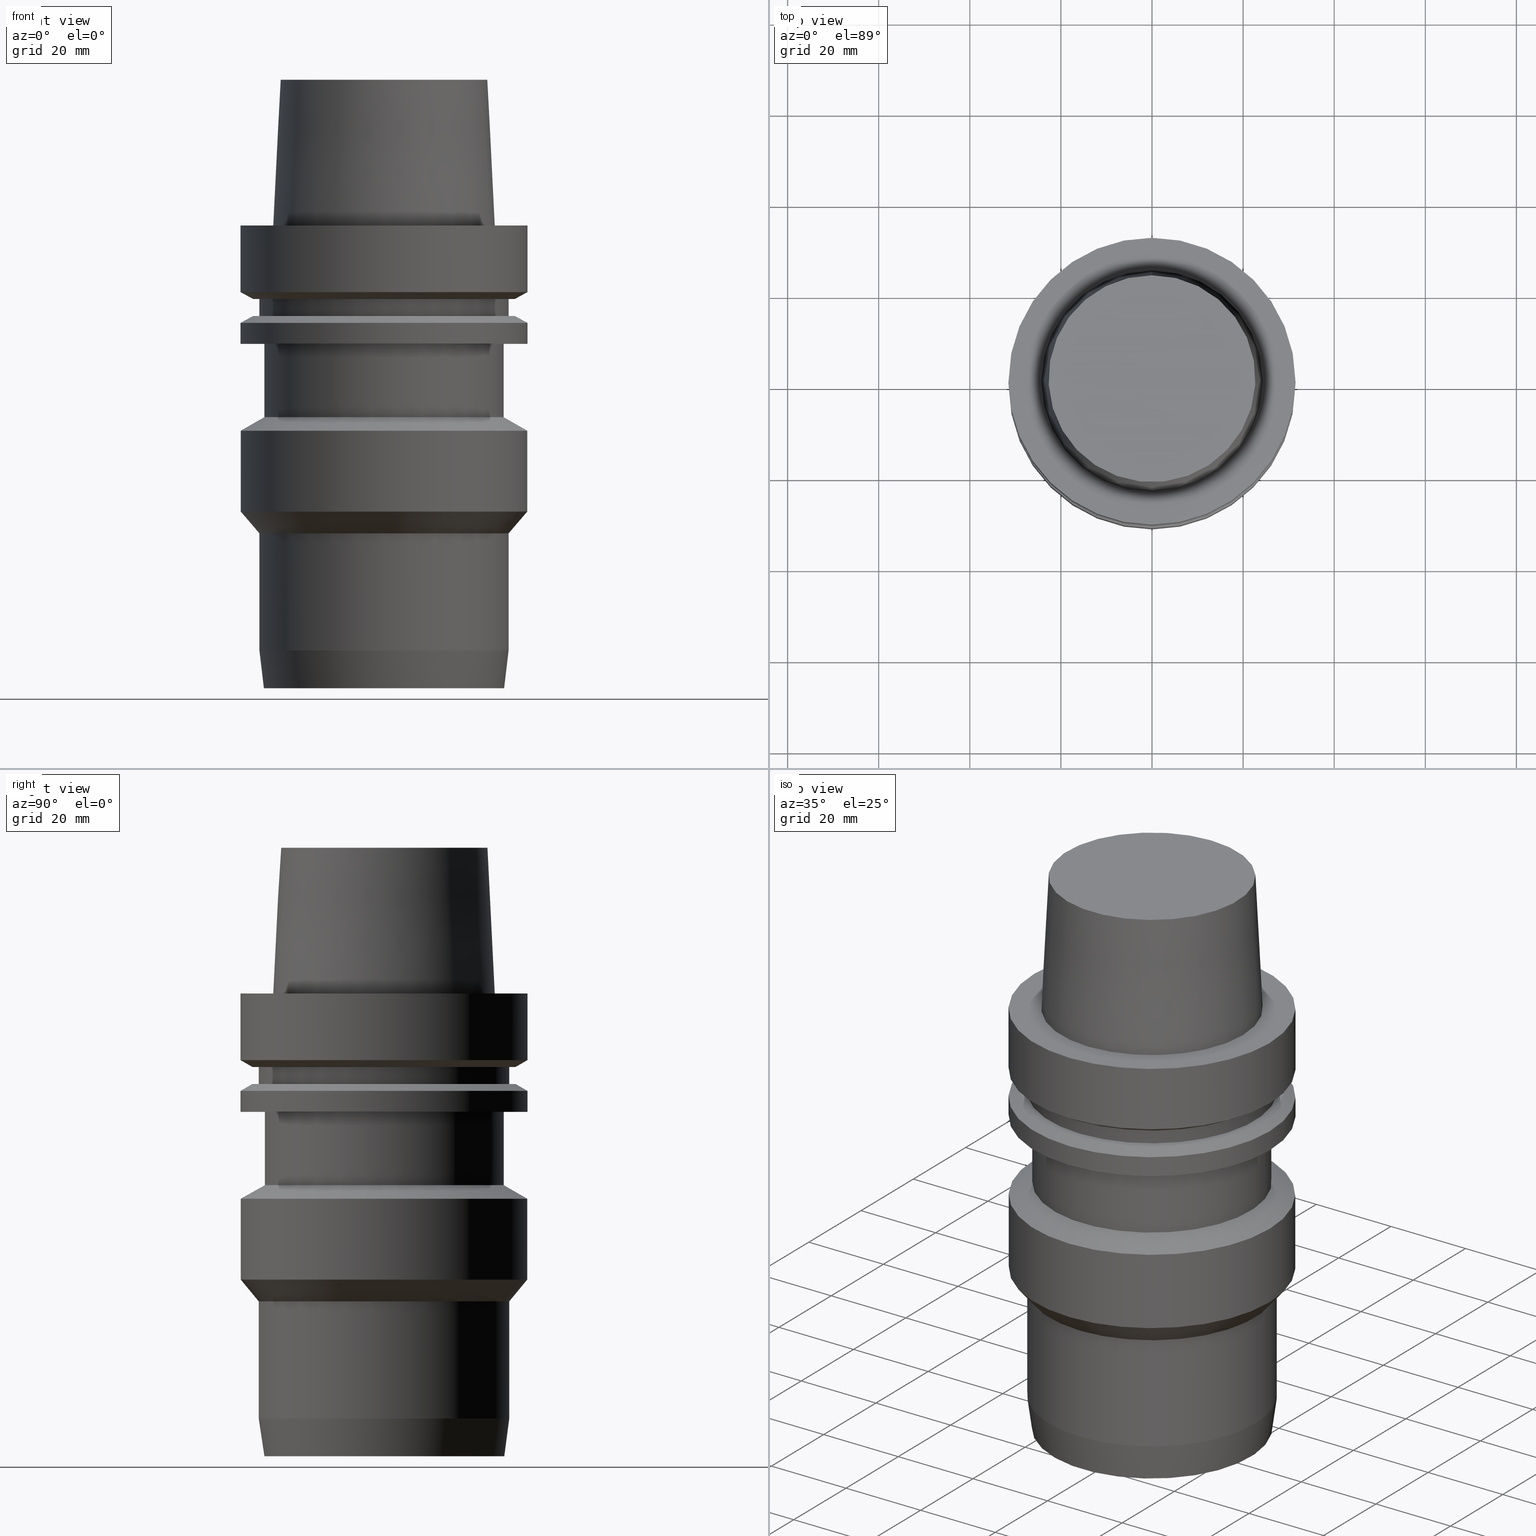
[diagram: canonical four-view strip — front | top / right | iso, engineering-drawing reading convention]
A machine part, canonical four-view strip (front | top / right | iso — engineering-drawing reading convention). The complete STEP part file that produces these views, byte-faithful:
ISO-10303-21;
HEADER;
FILE_DESCRIPTION((''),'1');
FILE_NAME('V:/90_\X2\53D65F9730C730FC30BF\X0\/00_\X2\6DE18DEF30C730FC30BF\X0\/ALL/HSK-BKUS\X2\52A05DE556F3\X0\_201801/HSK-A63-HDC/HSK-A63-HDC1.000-4.stp','2018-02-01T05:24:52',(''),(''),'Spatial Interop R21 SP3','Kubotek KeyCreator 2011 V10.0.2 (22737)',' ');
FILE_SCHEMA(('automotive_design'));
ENDSEC;
DATA;
#1=MECHANICAL_DESIGN_GEOMETRIC_PRESENTATION_REPRESENTATION(' ',(#10,#11,#12,#13,#14,#15,#16,#17,#18,#19,#20,#21,#22,#23,#24,#25,#26,#27,#28,#29,#30,#31,#32,#33,#34,#35,#36,#37,#38,#39,#40,#41,#42,#43,#44,#45),#6);
#2=PRODUCT_DEFINITION_CONTEXT('',#46,'design');
#3=APPLICATION_PROTOCOL_DEFINITION('INTERNATIONAL STANDARD','automotive_design',1994,#46);
#4=PRODUCT_CATEGORY_RELATIONSHIP('NONE','NONE',#47,#48);
#5=SHAPE_DEFINITION_REPRESENTATION(#49,#50);
#6= (GEOMETRIC_REPRESENTATION_CONTEXT(3)GLOBAL_UNCERTAINTY_ASSIGNED_CONTEXT((#53))GLOBAL_UNIT_ASSIGNED_CONTEXT((#55,#56,#57))REPRESENTATION_CONTEXT('NONE','WORKSPACE'));
#10=STYLED_ITEM('',(#59),#60);
#11=STYLED_ITEM('',(#61,#62),#63);
#12=STYLED_ITEM('',(#64,#65),#66);
#13=STYLED_ITEM('',(#67,#68),#69);
#14=STYLED_ITEM('',(#70),#71);
#15=STYLED_ITEM('',(#72),#73);
#16=STYLED_ITEM('',(#74),#75);
#17=STYLED_ITEM('',(#76),#77);
#18=STYLED_ITEM('',(#78),#79);
#19=STYLED_ITEM('',(#80,#81),#82);
#20=STYLED_ITEM('',(#83,#84),#85);
#21=STYLED_ITEM('',(#86,#87),#88);
#22=STYLED_ITEM('',(#89),#90);
#23=STYLED_ITEM('',(#91),#92);
#24=STYLED_ITEM('',(#93,#94),#95);
#25=STYLED_ITEM('',(#96,#97),#98);
#26=STYLED_ITEM('',(#99,#100),#101);
#27=STYLED_ITEM('',(#102),#103);
#28=STYLED_ITEM('',(#104,#105),#106);
#29=STYLED_ITEM('',(#107),#108);
#30=STYLED_ITEM('',(#109,#110),#111);
#31=STYLED_ITEM('',(#112,#113),#114);
#32=STYLED_ITEM('',(#115,#116),#117);
#33=STYLED_ITEM('',(#118,#119),#120);
#34=STYLED_ITEM('',(#121,#122),#123);
#35=STYLED_ITEM('',(#124),#125);
#36=STYLED_ITEM('',(#126,#127),#128);
#37=STYLED_ITEM('',(#129),#130);
#38=STYLED_ITEM('',(#131,#132),#133);
#39=STYLED_ITEM('',(#134),#135);
#40=STYLED_ITEM('',(#136,#137),#138);
#41=STYLED_ITEM('',(#139),#140);
#42=STYLED_ITEM('',(#141),#142);
#43=STYLED_ITEM('',(#143),#144);
#44=STYLED_ITEM('',(#145),#146);
#45=STYLED_ITEM('',(#147,#148),#149);
#46=APPLICATION_CONTEXT(' ');
#47=PRODUCT_CATEGORY('part','NONE');
#48=PRODUCT_RELATED_PRODUCT_CATEGORY('detail',' ',(#150));
#49=PRODUCT_DEFINITION_SHAPE('NONE','NONE',#151);
#50=ADVANCED_BREP_SHAPE_REPRESENTATION('Unnamed[1]',(#63,#152),#6);
#53=UNCERTAINTY_MEASURE_WITH_UNIT(LENGTH_MEASURE(1.0E-006),#55,'','');
#55= (CONVERSION_BASED_UNIT('MILLIMETRE',#155)LENGTH_UNIT()NAMED_UNIT(#158));
#56= (NAMED_UNIT(#160)PLANE_ANGLE_UNIT()SI_UNIT($,.RADIAN.));
#57= (NAMED_UNIT(#160)SOLID_ANGLE_UNIT()SI_UNIT($,.STERADIAN.));
#59=PRESENTATION_STYLE_ASSIGNMENT((#166));
#60=EDGE_CURVE('Unnamed[1]',#167,#167,#168,.T.);
#61=PRESENTATION_STYLE_ASSIGNMENT((#169));
#62=PRESENTATION_STYLE_ASSIGNMENT((#170));
#63=MANIFOLD_SOLID_BREP('Unnamed[1]',#171);
#64=PRESENTATION_STYLE_ASSIGNMENT((#172));
#65=PRESENTATION_STYLE_ASSIGNMENT((#173));
#66=ADVANCED_FACE('Unnamed[1]',(#174,#175),#176,.T.);
#67=PRESENTATION_STYLE_ASSIGNMENT((#177));
#68=PRESENTATION_STYLE_ASSIGNMENT((#178));
#69=ADVANCED_FACE('Unnamed[1]',(#179,#180),#181,.T.);
#70=PRESENTATION_STYLE_ASSIGNMENT((#182));
#71=EDGE_CURVE('Unnamed[1]',#183,#183,#184,.T.);
#72=PRESENTATION_STYLE_ASSIGNMENT((#185));
#73=EDGE_CURVE('Unnamed[1]',#186,#186,#187,.T.);
#74=PRESENTATION_STYLE_ASSIGNMENT((#188));
#75=EDGE_CURVE('Unnamed[1]',#189,#189,#190,.T.);
#76=PRESENTATION_STYLE_ASSIGNMENT((#191));
#77=EDGE_CURVE('Unnamed[1]',#192,#192,#193,.T.);
#78=PRESENTATION_STYLE_ASSIGNMENT((#194));
#79=EDGE_CURVE('Unnamed[1]',#195,#195,#196,.T.);
#80=PRESENTATION_STYLE_ASSIGNMENT((#197));
#81=PRESENTATION_STYLE_ASSIGNMENT((#198));
#82=ADVANCED_FACE('Unnamed[1]',(#199,#200),#201,.T.);
#83=PRESENTATION_STYLE_ASSIGNMENT((#202));
#84=PRESENTATION_STYLE_ASSIGNMENT((#203));
#85=ADVANCED_FACE('Unnamed[1]',(#204,#205),#206,.T.);
#86=PRESENTATION_STYLE_ASSIGNMENT((#207));
#87=PRESENTATION_STYLE_ASSIGNMENT((#208));
#88=ADVANCED_FACE('Unnamed[1]',(#209,#210),#211,.T.);
#89=PRESENTATION_STYLE_ASSIGNMENT((#212));
#90=EDGE_CURVE('Unnamed[1]',#213,#213,#214,.T.);
#91=PRESENTATION_STYLE_ASSIGNMENT((#215));
#92=EDGE_CURVE('Unnamed[1]',#216,#216,#217,.T.);
#93=PRESENTATION_STYLE_ASSIGNMENT((#218));
#94=PRESENTATION_STYLE_ASSIGNMENT((#219));
#95=ADVANCED_FACE('Unnamed[1]',(#220,#221),#222,.T.);
#96=PRESENTATION_STYLE_ASSIGNMENT((#223));
#97=PRESENTATION_STYLE_ASSIGNMENT((#224));
#98=ADVANCED_FACE('Unnamed[1]',(#225),#226,.T.);
#99=PRESENTATION_STYLE_ASSIGNMENT((#227));
#100=PRESENTATION_STYLE_ASSIGNMENT((#228));
#101=ADVANCED_FACE('Unnamed[1]',(#229,#230),#231,.T.);
#102=PRESENTATION_STYLE_ASSIGNMENT((#232));
#103=EDGE_CURVE('Unnamed[1]',#233,#233,#234,.T.);
#104=PRESENTATION_STYLE_ASSIGNMENT((#235));
#105=PRESENTATION_STYLE_ASSIGNMENT((#236));
#106=ADVANCED_FACE('Unnamed[1]',(#237,#238),#239,.T.);
#107=PRESENTATION_STYLE_ASSIGNMENT((#240));
#108=EDGE_CURVE('Unnamed[1]',#241,#241,#242,.T.);
#109=PRESENTATION_STYLE_ASSIGNMENT((#243));
#110=PRESENTATION_STYLE_ASSIGNMENT((#244));
#111=ADVANCED_FACE('Unnamed[1]',(#245,#246),#247,.T.);
#112=PRESENTATION_STYLE_ASSIGNMENT((#248));
#113=PRESENTATION_STYLE_ASSIGNMENT((#249));
#114=ADVANCED_FACE('Unnamed[1]',(#250,#251),#252,.T.);
#115=PRESENTATION_STYLE_ASSIGNMENT((#253));
#116=PRESENTATION_STYLE_ASSIGNMENT((#254));
#117=ADVANCED_FACE('Unnamed[1]',(#255,#256),#257,.T.);
#118=PRESENTATION_STYLE_ASSIGNMENT((#258));
#119=PRESENTATION_STYLE_ASSIGNMENT((#259));
#120=ADVANCED_FACE('Unnamed[1]',(#260,#261),#262,.T.);
#121=PRESENTATION_STYLE_ASSIGNMENT((#263));
#122=PRESENTATION_STYLE_ASSIGNMENT((#264));
#123=ADVANCED_FACE('Unnamed[1]',(#265,#266),#267,.T.);
#124=PRESENTATION_STYLE_ASSIGNMENT((#268));
#125=EDGE_CURVE('Unnamed[1]',#269,#269,#270,.T.);
#126=PRESENTATION_STYLE_ASSIGNMENT((#271));
#127=PRESENTATION_STYLE_ASSIGNMENT((#272));
#128=ADVANCED_FACE('Unnamed[1]',(#273,#274),#275,.T.);
#129=PRESENTATION_STYLE_ASSIGNMENT((#276));
#130=EDGE_CURVE('Unnamed[1]',#277,#277,#278,.T.);
#131=PRESENTATION_STYLE_ASSIGNMENT((#279));
#132=PRESENTATION_STYLE_ASSIGNMENT((#280));
#133=ADVANCED_FACE('Unnamed[1]',(#281,#282),#283,.T.);
#134=PRESENTATION_STYLE_ASSIGNMENT((#284));
#135=EDGE_CURVE('Unnamed[1]',#285,#285,#286,.T.);
#136=PRESENTATION_STYLE_ASSIGNMENT((#287));
#137=PRESENTATION_STYLE_ASSIGNMENT((#288));
#138=ADVANCED_FACE('Unnamed[1]',(#289),#290,.T.);
#139=PRESENTATION_STYLE_ASSIGNMENT((#291));
#140=EDGE_CURVE('Unnamed[1]',#292,#292,#293,.T.);
#141=PRESENTATION_STYLE_ASSIGNMENT((#294));
#142=EDGE_CURVE('Unnamed[1]',#295,#295,#296,.T.);
#143=PRESENTATION_STYLE_ASSIGNMENT((#297));
#144=EDGE_CURVE('Unnamed[1]',#298,#298,#299,.T.);
#145=PRESENTATION_STYLE_ASSIGNMENT((#300));
#146=EDGE_CURVE('Unnamed[1]',#301,#301,#302,.T.);
#147=PRESENTATION_STYLE_ASSIGNMENT((#303));
#148=PRESENTATION_STYLE_ASSIGNMENT((#304));
#149=ADVANCED_FACE('Unnamed[1]',(#305,#306),#307,.T.);
#150=PRODUCT('Unnamed[1]','Unnamed[1]','PART-Unnamed[1]-DESC',(#308));
#151=PRODUCT_DEFINITION('NONE','NONE',#309,#2);
#152=AXIS2_PLACEMENT_3D('',#310,#311,#312);
#155=LENGTH_MEASURE_WITH_UNIT(LENGTH_MEASURE(1.0),#313);
#158=DIMENSIONAL_EXPONENTS(1.0,0.0,0.0,0.0,0.0,0.0,0.0);
#160=DIMENSIONAL_EXPONENTS(0.0,0.0,0.0,0.0,0.0,0.0,0.0);
#166=CURVE_STYLE('',#314,POSITIVE_LENGTH_MEASURE(1000.0),#315);
#167=VERTEX_POINT('',#316);
#168=CIRCLE('',#317,31.4999999999998);
#169=SURFACE_STYLE_USAGE(.BOTH.,#318);
#170=CURVE_STYLE('',#319,POSITIVE_LENGTH_MEASURE(1000.0),#320);
#171=CLOSED_SHELL('',(#98,#111,#85,#128,#101,#133,#88,#95,#120,#149,#69,#117,#66,#123,#106,#82,#114,#138));
#172=SURFACE_STYLE_USAGE(.BOTH.,#321);
#173=CURVE_STYLE('',#322,POSITIVE_LENGTH_MEASURE(1000.0),#323);
#174=FACE_OUTER_BOUND('',#324,.T.);
#175=FACE_BOUND('',#325,.T.);
#176=PLANE('',#326);
#177=SURFACE_STYLE_USAGE(.BOTH.,#327);
#178=CURVE_STYLE('',#328,POSITIVE_LENGTH_MEASURE(1000.0),#329);
#179=FACE_BOUND('',#330,.T.);
#180=FACE_OUTER_BOUND('',#331,.T.);
#181=PLANE('',#332);
#182=CURVE_STYLE('',#333,POSITIVE_LENGTH_MEASURE(1000.0),#334);
#183=VERTEX_POINT('',#335);
#184=CIRCLE('',#336,26.3);
#185=CURVE_STYLE('',#337,POSITIVE_LENGTH_MEASURE(1000.0),#338);
#186=VERTEX_POINT('',#339);
#187=CIRCLE('',#340,26.3);
#188=CURVE_STYLE('',#341,POSITIVE_LENGTH_MEASURE(1000.0),#342);
#189=VERTEX_POINT('',#343);
#190=CIRCLE('',#344,24.315);
#191=CURVE_STYLE('',#345,POSITIVE_LENGTH_MEASURE(1000.0),#346);
#192=VERTEX_POINT('',#347);
#193=CIRCLE('',#348,28.8975952641919);
#194=CURVE_STYLE('',#349,POSITIVE_LENGTH_MEASURE(1000.0),#350);
#195=VERTEX_POINT('',#351);
#196=CIRCLE('',#352,31.5000000000001);
#197=SURFACE_STYLE_USAGE(.BOTH.,#353);
#198=CURVE_STYLE('',#354,POSITIVE_LENGTH_MEASURE(1000.0),#355);
#199=FACE_BOUND('',#356,.T.);
#200=FACE_OUTER_BOUND('',#357,.T.);
#201=PLANE('',#358);
#202=SURFACE_STYLE_USAGE(.BOTH.,#359);
#203=CURVE_STYLE('',#360,POSITIVE_LENGTH_MEASURE(1000.0),#361);
#204=FACE_BOUND('',#362,.T.);
#205=FACE_BOUND('',#363,.T.);
#206=CYLINDRICAL_SURFACE('',#364,27.5000000000023);
#207=SURFACE_STYLE_USAGE(.BOTH.,#365);
#208=CURVE_STYLE('',#366,POSITIVE_LENGTH_MEASURE(1000.0),#367);
#209=FACE_BOUND('',#368,.T.);
#210=FACE_BOUND('',#369,.T.);
#211=CYLINDRICAL_SURFACE('',#370,26.3);
#212=CURVE_STYLE('',#371,POSITIVE_LENGTH_MEASURE(1000.0),#372);
#213=VERTEX_POINT('',#373);
#214=CIRCLE('',#374,26.4085690956199);
#215=CURVE_STYLE('',#375,POSITIVE_LENGTH_MEASURE(1000.0),#376);
#216=VERTEX_POINT('',#377);
#217=CIRCLE('',#378,27.5000000000029);
#218=SURFACE_STYLE_USAGE(.BOTH.,#379);
#219=CURVE_STYLE('',#380,POSITIVE_LENGTH_MEASURE(1000.0),#381);
#220=FACE_OUTER_BOUND('',#382,.T.);
#221=FACE_BOUND('',#383,.T.);
#222=PLANE('',#384);
#223=SURFACE_STYLE_USAGE(.BOTH.,#385);
#224=CURVE_STYLE('',#386,POSITIVE_LENGTH_MEASURE(1000.0),#387);
#225=FACE_OUTER_BOUND('',#388,.T.);
#226=PLANE('',#389);
#227=SURFACE_STYLE_USAGE(.BOTH.,#390);
#228=CURVE_STYLE('',#391,POSITIVE_LENGTH_MEASURE(1000.0),#392);
#229=FACE_BOUND('',#393,.T.);
#230=FACE_BOUND('',#394,.T.);
#231=CYLINDRICAL_SURFACE('',#395,31.45);
#232=CURVE_STYLE('',#396,POSITIVE_LENGTH_MEASURE(1000.0),#397);
#233=VERTEX_POINT('',#398);
#234=CIRCLE('',#399,31.5);
#235=SURFACE_STYLE_USAGE(.BOTH.,#400);
#236=CURVE_STYLE('',#401,POSITIVE_LENGTH_MEASURE(1000.0),#402);
#237=FACE_BOUND('',#403,.T.);
#238=FACE_BOUND('',#404,.T.);
#239=CYLINDRICAL_SURFACE('',#405,31.5);
#240=CURVE_STYLE('',#406,POSITIVE_LENGTH_MEASURE(1000.0),#407);
#241=VERTEX_POINT('',#408);
#242=CIRCLE('',#409,31.5);
#243=SURFACE_STYLE_USAGE(.BOTH.,#410);
#244=CURVE_STYLE('',#411,POSITIVE_LENGTH_MEASURE(1000.0),#412);
#245=FACE_BOUND('',#413,.T.);
#246=FACE_BOUND('',#414,.T.);
#247=CONICAL_SURFACE('',#415,26.9542845478114,0.130899693899458);
#248=SURFACE_STYLE_USAGE(.BOTH.,#416);
#249=CURVE_STYLE('',#417,POSITIVE_LENGTH_MEASURE(1000.0),#418);
#250=FACE_BOUND('',#419,.T.);
#251=FACE_BOUND('',#420,.T.);
#252=CONICAL_SURFACE('',#421,23.515,0.0499583957219433);
#253=SURFACE_STYLE_USAGE(.BOTH.,#422);
#254=CURVE_STYLE('',#423,POSITIVE_LENGTH_MEASURE(1000.0),#424);
#255=FACE_BOUND('',#425,.T.);
#256=FACE_BOUND('',#426,.T.);
#257=CYLINDRICAL_SURFACE('',#427,27.4999999999994);
#258=SURFACE_STYLE_USAGE(.BOTH.,#428);
#259=CURVE_STYLE('',#429,POSITIVE_LENGTH_MEASURE(1000.0),#430);
#260=FACE_BOUND('',#431,.T.);
#261=FACE_BOUND('',#432,.T.);
#262=CYLINDRICAL_SURFACE('',#433,31.4999999999999);
#263=SURFACE_STYLE_USAGE(.BOTH.,#434);
#264=CURVE_STYLE('',#435,POSITIVE_LENGTH_MEASURE(1000.0),#436);
#265=FACE_BOUND('',#437,.T.);
#266=FACE_BOUND('',#438,.T.);
#267=CONICAL_SURFACE('',#439,30.1987976320959,1.04719755119657);
#268=CURVE_STYLE('',#440,POSITIVE_LENGTH_MEASURE(1000.0),#441);
#269=VERTEX_POINT('',#442);
#270=CIRCLE('',#443,27.5);
#271=SURFACE_STYLE_USAGE(.BOTH.,#444);
#272=CURVE_STYLE('',#445,POSITIVE_LENGTH_MEASURE(1000.0),#446);
#273=FACE_BOUND('',#447,.T.);
#274=FACE_BOUND('',#448,.T.);
#275=CONICAL_SURFACE('',#449,29.4750000000008,0.690770238561187);
#276=CURVE_STYLE('',#450,POSITIVE_LENGTH_MEASURE(1000.0),#451);
#277=VERTEX_POINT('',#452);
#278=CIRCLE('',#453,28.8975952641919);
#279=SURFACE_STYLE_USAGE(.BOTH.,#454);
#280=CURVE_STYLE('',#455,POSITIVE_LENGTH_MEASURE(1000.0),#456);
#281=FACE_BOUND('',#457,.T.);
#282=FACE_BOUND('',#458,.T.);
#283=CONICAL_SURFACE('',#459,28.875,1.04719755119662);
#284=CURVE_STYLE('',#460,POSITIVE_LENGTH_MEASURE(1000.0),#461);
#285=VERTEX_POINT('',#462);
#286=CIRCLE('',#463,22.715);
#287=SURFACE_STYLE_USAGE(.BOTH.,#464);
#288=CURVE_STYLE('',#465,POSITIVE_LENGTH_MEASURE(1000.0),#466);
#289=FACE_OUTER_BOUND('',#467,.T.);
#290=PLANE('',#468);
#291=CURVE_STYLE('',#469,POSITIVE_LENGTH_MEASURE(1000.0),#470);
#292=VERTEX_POINT('',#471);
#293=CIRCLE('',#472,31.45);
#294=CURVE_STYLE('',#473,POSITIVE_LENGTH_MEASURE(1000.0),#474);
#295=VERTEX_POINT('',#475);
#296=CIRCLE('',#476,27.5000000000017);
#297=CURVE_STYLE('',#477,POSITIVE_LENGTH_MEASURE(1000.0),#478);
#298=VERTEX_POINT('',#479);
#299=CIRCLE('',#480,31.45);
#300=CURVE_STYLE('',#481,POSITIVE_LENGTH_MEASURE(1000.0),#482);
#301=VERTEX_POINT('',#483);
#302=CIRCLE('',#484,27.4999999999989);
#303=SURFACE_STYLE_USAGE(.BOTH.,#485);
#304=CURVE_STYLE('',#486,POSITIVE_LENGTH_MEASURE(1000.0),#487);
#305=FACE_BOUND('',#488,.T.);
#306=FACE_BOUND('',#489,.T.);
#307=CONICAL_SURFACE('',#490,30.1987976320959,1.04719755119657);
#308=PRODUCT_CONTEXT('',#46,'mechanical');
#309=PRODUCT_DEFINITION_FORMATION_WITH_SPECIFIED_SOURCE(' ','NONE',#150,.NOT_KNOWN.);
#310=CARTESIAN_POINT('',(0.0,0.0,0.0));
#311=DIRECTION('',(0.0,0.0,1.0));
#312=DIRECTION('',(1.0,0.0,0.0));
#313= (NAMED_UNIT(#158)LENGTH_UNIT()SI_UNIT(.MILLI.,.METRE.));
#314=DRAUGHTING_PRE_DEFINED_CURVE_FONT('continuous');
#315=COLOUR_RGB('',0.0,1.0,0.0);
#316=CARTESIAN_POINT('',(1.59204083889155E-015,31.4999999999998,-25.9999999999999));
#317=AXIS2_PLACEMENT_3D('',#492,#493,#494);
#318=SURFACE_SIDE_STYLE('',(#495));
#319=DRAUGHTING_PRE_DEFINED_CURVE_FONT('continuous');
#320=COLOUR_RGB('',0.0,1.0,0.0);
#321=SURFACE_SIDE_STYLE('',(#496));
#322=DRAUGHTING_PRE_DEFINED_CURVE_FONT('continuous');
#323=COLOUR_RGB('',0.0,1.0,0.0);
#324=EDGE_LOOP('',(#497));
#325=EDGE_LOOP('',(#498));
#326=AXIS2_PLACEMENT_3D('',#499,#500,#501);
#327=SURFACE_SIDE_STYLE('',(#502));
#328=DRAUGHTING_PRE_DEFINED_CURVE_FONT('continuous');
#329=COLOUR_RGB('',0.0,1.0,0.0);
#330=EDGE_LOOP('',(#503));
#331=EDGE_LOOP('',(#504));
#332=AXIS2_PLACEMENT_3D('',#505,#506,#507);
#333=DRAUGHTING_PRE_DEFINED_CURVE_FONT('continuous');
#334=COLOUR_RGB('',0.0,1.0,0.0);
#335=CARTESIAN_POINT('',(2.57653440072611E-015,26.3,-42.078));
#336=AXIS2_PLACEMENT_3D('',#508,#509,#510);
#337=DRAUGHTING_PRE_DEFINED_CURVE_FONT('continuous');
#338=COLOUR_RGB('',0.0,1.0,0.0);
#339=CARTESIAN_POINT('',(1.59204083889154E-015,26.3,-25.9999999999997));
#340=AXIS2_PLACEMENT_3D('',#511,#512,#513);
#341=DRAUGHTING_PRE_DEFINED_CURVE_FONT('continuous');
#342=COLOUR_RGB('',0.0,1.0,0.0);
#343=CARTESIAN_POINT('',(-2.99705514225764E-031,24.315,2.97772869212679E-015));
#344=AXIS2_PLACEMENT_3D('',#514,#515,#516);
#345=DRAUGHTING_PRE_DEFINED_CURVE_FONT('continuous');
#346=COLOUR_RGB('',0.0,1.0,0.0);
#347=CARTESIAN_POINT('',(1.21699275665268E-015,28.8975952641919,-19.875));
#348=AXIS2_PLACEMENT_3D('',#517,#518,#519);
#349=DRAUGHTING_PRE_DEFINED_CURVE_FONT('continuous');
#350=COLOUR_RGB('',0.0,1.0,0.0);
#351=CARTESIAN_POINT('',(-3.88267476788467E-031,31.5000000000001,3.85763741731417E-015));
#352=AXIS2_PLACEMENT_3D('',#520,#521,#522);
#353=SURFACE_SIDE_STYLE('',(#523));
#354=DRAUGHTING_PRE_DEFINED_CURVE_FONT('continuous');
#355=COLOUR_RGB('',0.0,1.0,0.0);
#356=EDGE_LOOP('',(#524));
#357=EDGE_LOOP('',(#525));
#358=AXIS2_PLACEMENT_3D('',#526,#527,#528);
#359=SURFACE_SIDE_STYLE('',(#529));
#360=DRAUGHTING_PRE_DEFINED_CURVE_FONT('continuous');
#361=COLOUR_RGB('',0.0,1.0,0.0);
#362=EDGE_LOOP('',(#530));
#363=EDGE_LOOP('',(#531));
#364=AXIS2_PLACEMENT_3D('',#532,#533,#534);
#365=SURFACE_SIDE_STYLE('',(#535));
#366=DRAUGHTING_PRE_DEFINED_CURVE_FONT('continuous');
#367=COLOUR_RGB('',0.0,1.0,0.0);
#368=EDGE_LOOP('',(#536));
#369=EDGE_LOOP('',(#537));
#370=AXIS2_PLACEMENT_3D('',#538,#539,#540);
#371=DRAUGHTING_PRE_DEFINED_CURVE_FONT('continuous');
#372=COLOUR_RGB('',0.0,1.0,0.0);
#373=CARTESIAN_POINT('',(6.22120573966869E-015,26.40856909562,-101.600000000002));
#374=AXIS2_PLACEMENT_3D('',#541,#542,#543);
#375=DRAUGHTING_PRE_DEFINED_CURVE_FONT('continuous');
#376=COLOUR_RGB('',0.0,1.0,0.0);
#377=CARTESIAN_POINT('',(5.71357489785462E-015,27.5000000000029,-93.3097592192726));
#378=AXIS2_PLACEMENT_3D('',#544,#545,#546);
#379=SURFACE_SIDE_STYLE('',(#547));
#380=DRAUGHTING_PRE_DEFINED_CURVE_FONT('continuous');
#381=COLOUR_RGB('',0.0,1.0,0.0);
#382=EDGE_LOOP('',(#548));
#383=EDGE_LOOP('',(#549));
#384=AXIS2_PLACEMENT_3D('',#550,#551,#552);
#385=SURFACE_SIDE_STYLE('',(#553));
#386=DRAUGHTING_PRE_DEFINED_CURVE_FONT('continuous');
#387=COLOUR_RGB('',0.0,1.0,0.0);
#388=EDGE_LOOP('',(#554));
#389=AXIS2_PLACEMENT_3D('',#555,#556,#557);
#390=SURFACE_SIDE_STYLE('',(#558));
#391=DRAUGHTING_PRE_DEFINED_CURVE_FONT('continuous');
#392=COLOUR_RGB('',0.0,1.0,0.0);
#393=EDGE_LOOP('',(#559));
#394=EDGE_LOOP('',(#560));
#395=AXIS2_PLACEMENT_3D('',#561,#562,#563);
#396=DRAUGHTING_PRE_DEFINED_CURVE_FONT('continuous');
#397=COLOUR_RGB('',0.0,1.0,0.0);
#398=CARTESIAN_POINT('',(1.30899429078397E-015,31.5,-21.3774990747592));
#399=AXIS2_PLACEMENT_3D('',#564,#565,#566);
#400=SURFACE_SIDE_STYLE('',(#567));
#401=DRAUGHTING_PRE_DEFINED_CURVE_FONT('continuous');
#402=COLOUR_RGB('',0.0,1.0,0.0);
#403=EDGE_LOOP('',(#568));
#404=EDGE_LOOP('',(#569));
#405=AXIS2_PLACEMENT_3D('',#570,#571,#572);
#406=DRAUGHTING_PRE_DEFINED_CURVE_FONT('continuous');
#407=COLOUR_RGB('',0.0,1.0,0.0);
#408=CARTESIAN_POINT('',(8.95369947681261E-016,31.5,-14.6225009252407));
#409=AXIS2_PLACEMENT_3D('',#573,#574,#575);
#410=SURFACE_SIDE_STYLE('',(#576));
#411=DRAUGHTING_PRE_DEFINED_CURVE_FONT('continuous');
#412=COLOUR_RGB('',0.0,1.0,0.0);
#413=EDGE_LOOP('',(#577));
#414=EDGE_LOOP('',(#578));
#415=AXIS2_PLACEMENT_3D('',#579,#580,#581);
#416=SURFACE_SIDE_STYLE('',(#582));
#417=DRAUGHTING_PRE_DEFINED_CURVE_FONT('continuous');
#418=COLOUR_RGB('',0.0,1.0,0.0);
#419=EDGE_LOOP('',(#583));
#420=EDGE_LOOP('',(#584));
#421=AXIS2_PLACEMENT_3D('',#585,#586,#587);
#422=SURFACE_SIDE_STYLE('',(#588));
#423=DRAUGHTING_PRE_DEFINED_CURVE_FONT('continuous');
#424=COLOUR_RGB('',0.0,1.0,0.0);
#425=EDGE_LOOP('',(#589));
#426=EDGE_LOOP('',(#590));
#427=AXIS2_PLACEMENT_3D('',#591,#592,#593);
#428=SURFACE_SIDE_STYLE('',(#594));
#429=DRAUGHTING_PRE_DEFINED_CURVE_FONT('continuous');
#430=COLOUR_RGB('',0.0,1.0,0.0);
#431=EDGE_LOOP('',(#595));
#432=EDGE_LOOP('',(#596));
#433=AXIS2_PLACEMENT_3D('',#597,#598,#599);
#434=SURFACE_SIDE_STYLE('',(#600));
#435=DRAUGHTING_PRE_DEFINED_CURVE_FONT('continuous');
#436=COLOUR_RGB('',0.0,1.0,0.0);
#437=EDGE_LOOP('',(#601));
#438=EDGE_LOOP('',(#602));
#439=AXIS2_PLACEMENT_3D('',#603,#604,#605);
#440=DRAUGHTING_PRE_DEFINED_CURVE_FONT('continuous');
#441=COLOUR_RGB('',0.0,1.0,0.0);
#442=CARTESIAN_POINT('',(9.87371481812537E-016,27.5,-16.1249999999997));
#443=AXIS2_PLACEMENT_3D('',#606,#607,#608);
#444=SURFACE_SIDE_STYLE('',(#609));
#445=DRAUGHTING_PRE_DEFINED_CURVE_FONT('continuous');
#446=COLOUR_RGB('',0.0,1.0,0.0);
#447=EDGE_LOOP('',(#610));
#448=EDGE_LOOP('',(#611));
#449=AXIS2_PLACEMENT_3D('',#612,#613,#614);
#450=DRAUGHTING_PRE_DEFINED_CURVE_FONT('continuous');
#451=COLOUR_RGB('',0.0,1.0,0.0);
#452=CARTESIAN_POINT('',(9.87371481812551E-016,28.8975952641919,-16.125));
#453=AXIS2_PLACEMENT_3D('',#615,#616,#617);
#454=SURFACE_SIDE_STYLE('',(#618));
#455=DRAUGHTING_PRE_DEFINED_CURVE_FONT('continuous');
#456=COLOUR_RGB('',0.0,1.0,0.0);
#457=EDGE_LOOP('',(#619));
#458=EDGE_LOOP('',(#620));
#459=AXIS2_PLACEMENT_3D('',#621,#622,#623);
#460=DRAUGHTING_PRE_DEFINED_CURVE_FONT('continuous');
#461=COLOUR_RGB('',0.0,1.0,0.0);
#462=CARTESIAN_POINT('',(-1.95943487863576E-015,22.715,32.0));
#463=AXIS2_PLACEMENT_3D('',#624,#625,#626);
#464=SURFACE_SIDE_STYLE('',(#627));
#465=DRAUGHTING_PRE_DEFINED_CURVE_FONT('continuous');
#466=COLOUR_RGB('',0.0,1.0,0.0);
#467=EDGE_LOOP('',(#628));
#468=AXIS2_PLACEMENT_3D('',#629,#630,#631);
#469=DRAUGHTING_PRE_DEFINED_CURVE_FONT('continuous');
#470=COLOUR_RGB('',0.0,1.0,0.0);
#471=CARTESIAN_POINT('',(2.75859981670721E-015,31.45,-45.0513538863264));
#472=AXIS2_PLACEMENT_3D('',#632,#633,#634);
#473=DRAUGHTING_PRE_DEFINED_CURVE_FONT('continuous');
#474=COLOUR_RGB('',0.0,1.0,0.0);
#475=CARTESIAN_POINT('',(4.138532647199E-015,27.5000000000017,-67.5873672324201));
#476=AXIS2_PLACEMENT_3D('',#635,#636,#637);
#477=DRAUGHTING_PRE_DEFINED_CURVE_FONT('continuous');
#478=COLOUR_RGB('',0.0,1.0,0.0);
#479=CARTESIAN_POINT('',(3.84593837303515E-015,31.45,-62.8089401076758));
#480=AXIS2_PLACEMENT_3D('',#638,#639,#640);
#481=DRAUGHTING_PRE_DEFINED_CURVE_FONT('continuous');
#482=COLOUR_RGB('',0.0,1.0,0.0);
#483=CARTESIAN_POINT('',(1.21699275665276E-015,27.4999999999989,-19.8750000000013));
#484=AXIS2_PLACEMENT_3D('',#641,#642,#643);
#485=SURFACE_SIDE_STYLE('',(#644));
#486=DRAUGHTING_PRE_DEFINED_CURVE_FONT('continuous');
#487=COLOUR_RGB('',0.0,1.0,0.0);
#488=EDGE_LOOP('',(#645));
#489=EDGE_LOOP('',(#646));
#490=AXIS2_PLACEMENT_3D('',#647,#648,#649);
#492=CARTESIAN_POINT('',(1.59204083889155E-015,3.1840816777831E-015,-25.9999999999999));
#493=DIRECTION('',(-6.12323399573676E-017,-1.22464679914735E-016,1.0));
#494=DIRECTION('',(-1.23259516440783E-032,1.0,1.22464679914735E-016));
#495=SURFACE_STYLE_FILL_AREA(#650);
#496=SURFACE_STYLE_FILL_AREA(#651);
#497=ORIENTED_EDGE('',*,*,#130,.F.);
#498=ORIENTED_EDGE('',*,*,#125,.T.);
#499=CARTESIAN_POINT('',(9.87371481812544E-016,28.1987976320959,-16.1249999999999));
#500=DIRECTION('',(6.12323399573677E-017,-1.65108768595307E-013,-1.0));
#501=DIRECTION('',(-1.01051690958394E-029,-1.0,1.65108768595307E-013));
#502=SURFACE_STYLE_FILL_AREA(#652);
#503=ORIENTED_EDGE('',*,*,#146,.F.);
#504=ORIENTED_EDGE('',*,*,#77,.T.);
#505=CARTESIAN_POINT('',(1.21699275665272E-015,28.1987976320954,-19.8750000000006));
#506=DIRECTION('',(-6.12323399573677E-017,-9.58463617675421E-013,1.0));
#507=DIRECTION('',(-5.86937972270006E-029,1.0,9.58463617675421E-013));
#508=CARTESIAN_POINT('',(2.57653440072612E-015,5.15306880145223E-015,-42.078));
#509=DIRECTION('',(-6.12323399573677E-017,-1.22464679914735E-016,1.0));
#510=DIRECTION('',(-1.23259516440783E-032,1.0,1.22464679914735E-016));
#511=CARTESIAN_POINT('',(1.59204083889154E-015,3.18408167778308E-015,-25.9999999999997));
#512=DIRECTION('',(-6.12323399573677E-017,-1.22464679914735E-016,1.0));
#513=DIRECTION('',(-1.23259516440783E-032,1.0,1.22464679914735E-016));
#514=CARTESIAN_POINT('',(0.0,0.0,0.0));
#515=DIRECTION('',(-6.12323399573677E-017,-1.22464679914735E-016,1.0));
#516=DIRECTION('',(-1.23259516440783E-032,1.0,1.22464679914735E-016));
#517=CARTESIAN_POINT('',(1.21699275665268E-015,2.43398551330536E-015,-19.875));
#518=DIRECTION('',(-6.12323399573677E-017,-1.22464679914735E-016,1.0));
#519=DIRECTION('',(-1.23259516440783E-032,1.0,1.22464679914735E-016));
#520=CARTESIAN_POINT('',(0.0,0.0,0.0));
#521=DIRECTION('',(-6.12323399573677E-017,-1.22464679914735E-016,1.0));
#522=DIRECTION('',(-1.23259516440783E-032,1.0,1.22464679914735E-016));
#523=SURFACE_STYLE_FILL_AREA(#653);
#524=ORIENTED_EDGE('',*,*,#75,.F.);
#525=ORIENTED_EDGE('',*,*,#79,.T.);
#526=CARTESIAN_POINT('',(-3.43986495507116E-031,27.9075,3.41768305472048E-015));
#527=DIRECTION('',(-6.12323399573677E-017,-1.22464679914735E-016,1.0));
#528=DIRECTION('',(-1.23259516440783E-032,1.0,1.22464679914735E-016));
#529=SURFACE_STYLE_FILL_AREA(#654);
#530=ORIENTED_EDGE('',*,*,#142,.F.);
#531=ORIENTED_EDGE('',*,*,#92,.T.);
#532=CARTESIAN_POINT('',(4.92605377252681E-015,9.85210754505362E-015,-80.4485632258464));
#533=DIRECTION('',(-6.12323399573677E-017,-1.22464679914735E-016,1.0));
#534=DIRECTION('',(-1.23259516440783E-032,1.0,1.22464679914735E-016));
#535=SURFACE_STYLE_FILL_AREA(#655);
#536=ORIENTED_EDGE('',*,*,#73,.F.);
#537=ORIENTED_EDGE('',*,*,#71,.T.);
#538=CARTESIAN_POINT('',(2.08428761980883E-015,4.16857523961765E-015,-34.0389999999998));
#539=DIRECTION('',(-6.12323399573676E-017,-1.22464679914735E-016,1.0));
#540=DIRECTION('',(-1.23259516440783E-032,1.0,1.22464679914735E-016));
#541=CARTESIAN_POINT('',(6.22120573966869E-015,1.24424114793374E-014,-101.600000000002));
#542=DIRECTION('',(-6.12323399573677E-017,-1.22464679914735E-016,1.0));
#543=DIRECTION('',(-1.23259516440783E-032,1.0,1.22464679914735E-016));
#544=CARTESIAN_POINT('',(5.71357489785462E-015,1.14271497957092E-014,-93.3097592192726));
#545=DIRECTION('',(-6.12323399573677E-017,-1.22464679914735E-016,1.0));
#546=DIRECTION('',(-1.23259516440783E-032,1.0,1.22464679914735E-016));
#547=SURFACE_STYLE_FILL_AREA(#656);
#548=ORIENTED_EDGE('',*,*,#60,.F.);
#549=ORIENTED_EDGE('',*,*,#73,.T.);
#550=CARTESIAN_POINT('',(1.59204083889155E-015,28.8999999999999,-25.9999999999998));
#551=DIRECTION('',(6.12323399573677E-017,-4.01871712910924E-014,-1.0));
#552=DIRECTION('',(-2.45592738169036E-030,-1.0,4.01871712910924E-014));
#553=SURFACE_STYLE_FILL_AREA(#657);
#554=ORIENTED_EDGE('',*,*,#90,.F.);
#555=CARTESIAN_POINT('',(6.22120573966869E-015,13.20428454781,-101.600000000002));
#556=DIRECTION('',(6.12323399573677E-017,1.22464679914735E-016,-1.0));
#557=DIRECTION('',(1.23259516440783E-032,-1.0,-1.22464679914735E-016));
#558=SURFACE_STYLE_FILL_AREA(#658);
#559=ORIENTED_EDGE('',*,*,#140,.F.);
#560=ORIENTED_EDGE('',*,*,#144,.T.);
#561=CARTESIAN_POINT('',(3.30226909487118E-015,6.60453818974236E-015,-53.9301469970011));
#562=DIRECTION('',(-6.12323399573677E-017,-1.22464679914735E-016,1.0));
#563=DIRECTION('',(-1.23259516440783E-032,1.0,1.22464679914735E-016));
#564=CARTESIAN_POINT('',(1.30899429078397E-015,2.61798858156794E-015,-21.3774990747592));
#565=DIRECTION('',(-6.12323399573677E-017,-1.22464679914735E-016,1.0));
#566=DIRECTION('',(-1.23259516440783E-032,1.0,1.22464679914735E-016));
#567=SURFACE_STYLE_FILL_AREA(#659);
#568=ORIENTED_EDGE('',*,*,#79,.F.);
#569=ORIENTED_EDGE('',*,*,#108,.T.);
#570=CARTESIAN_POINT('',(4.47684973840631E-016,8.95369947681262E-016,-7.31125046262035));
#571=DIRECTION('',(-6.12323399573677E-017,-1.22464679914735E-016,1.0));
#572=DIRECTION('',(-1.23259516440783E-032,1.0,1.22464679914735E-016));
#573=CARTESIAN_POINT('',(8.95369947681262E-016,1.79073989536252E-015,-14.6225009252407));
#574=DIRECTION('',(-6.12323399573677E-017,-1.22464679914735E-016,1.0));
#575=DIRECTION('',(-1.23259516440783E-032,1.0,1.22464679914735E-016));
#576=SURFACE_STYLE_FILL_AREA(#660);
#577=ORIENTED_EDGE('',*,*,#92,.F.);
#578=ORIENTED_EDGE('',*,*,#90,.T.);
#579=CARTESIAN_POINT('',(5.96739031876166E-015,1.19347806375233E-014,-97.4548796096374));
#580=DIRECTION('',(-6.12323399573677E-017,-1.22464679914735E-016,1.0));
#581=DIRECTION('',(-1.23259516440783E-032,1.0,1.22464679914735E-016));
#582=SURFACE_STYLE_FILL_AREA(#661);
#583=ORIENTED_EDGE('',*,*,#135,.F.);
#584=ORIENTED_EDGE('',*,*,#75,.T.);
#585=CARTESIAN_POINT('',(-9.79717439317882E-016,-1.95943487863576E-015,16.0));
#586=DIRECTION('',(6.12323399573677E-017,1.22464679914735E-016,-1.0));
#587=DIRECTION('',(-1.23259516440783E-032,1.0,1.22464679914735E-016));
#588=SURFACE_STYLE_FILL_AREA(#662);
#589=ORIENTED_EDGE('',*,*,#125,.F.);
#590=ORIENTED_EDGE('',*,*,#146,.T.);
#591=CARTESIAN_POINT('',(1.10218211923265E-015,2.2043642384653E-015,-18.0000000000005));
#592=DIRECTION('',(-6.12323399573677E-017,-1.22464679914735E-016,1.0));
#593=DIRECTION('',(-1.23259516440783E-032,1.0,1.22464679914735E-016));
#594=SURFACE_STYLE_FILL_AREA(#663);
#595=ORIENTED_EDGE('',*,*,#103,.F.);
#596=ORIENTED_EDGE('',*,*,#60,.T.);
#597=CARTESIAN_POINT('',(1.45051756483776E-015,2.90103512967552E-015,-23.6887495373796));
#598=DIRECTION('',(-6.12323399573677E-017,-1.22464679914735E-016,1.0));
#599=DIRECTION('',(-1.23259516440783E-032,1.0,1.22464679914735E-016));
#600=SURFACE_STYLE_FILL_AREA(#664);
#601=ORIENTED_EDGE('',*,*,#108,.F.);
#602=ORIENTED_EDGE('',*,*,#130,.T.);
#603=CARTESIAN_POINT('',(9.41370714746907E-016,1.88274142949381E-015,-15.3737504626203));
#604=DIRECTION('',(-6.12323399573677E-017,-1.22464679914735E-016,1.0));
#605=DIRECTION('',(-1.23259516440783E-032,1.0,1.22464679914735E-016));
#606=CARTESIAN_POINT('',(9.87371481812538E-016,1.97474296362508E-015,-16.1249999999997));
#607=DIRECTION('',(-6.12323399573677E-017,-1.22464679914735E-016,1.0));
#608=DIRECTION('',(-1.23259516440783E-032,1.0,1.22464679914735E-016));
#609=SURFACE_STYLE_FILL_AREA(#665);
#610=ORIENTED_EDGE('',*,*,#144,.F.);
#611=ORIENTED_EDGE('',*,*,#142,.T.);
#612=CARTESIAN_POINT('',(3.99223551011707E-015,7.98447102023415E-015,-65.198153670048));
#613=DIRECTION('',(-6.12323399573677E-017,-1.22464679914735E-016,1.0));
#614=DIRECTION('',(-1.23259516440783E-032,1.0,1.22464679914735E-016));
#615=CARTESIAN_POINT('',(9.87371481812552E-016,1.9747429636251E-015,-16.125));
#616=DIRECTION('',(-6.12323399573677E-017,-1.22464679914735E-016,1.0));
#617=DIRECTION('',(-1.23259516440783E-032,1.0,1.22464679914735E-016));
#618=SURFACE_STYLE_FILL_AREA(#666);
#619=ORIENTED_EDGE('',*,*,#71,.F.);
#620=ORIENTED_EDGE('',*,*,#140,.T.);
#621=CARTESIAN_POINT('',(2.66756710871666E-015,5.33513421743333E-015,-43.5646769431632));
#622=DIRECTION('',(6.12323399573677E-017,1.22464679914735E-016,-1.0));
#623=DIRECTION('',(-1.23259516440783E-032,1.0,1.22464679914735E-016));
#624=CARTESIAN_POINT('',(-1.95943487863576E-015,-3.91886975727153E-015,32.0));
#625=DIRECTION('',(-6.12323399573676E-017,-1.22464679914735E-016,1.0));
#626=DIRECTION('',(-1.23259516440783E-032,1.0,1.22464679914735E-016));
#627=SURFACE_STYLE_FILL_AREA(#667);
#628=ORIENTED_EDGE('',*,*,#135,.T.);
#629=CARTESIAN_POINT('',(-1.95943487863576E-015,11.3575,32.0));
#630=DIRECTION('',(-6.12323399573677E-017,9.72362339746437E-016,1.0));
#631=DIRECTION('',(5.47128686183263E-032,1.0,-9.72362339746437E-016));
#632=CARTESIAN_POINT('',(2.75859981670721E-015,5.51719963341443E-015,-45.0513538863264));
#633=DIRECTION('',(-6.12323399573677E-017,-1.22464679914735E-016,1.0));
#634=DIRECTION('',(-1.23259516440783E-032,1.0,1.22464679914735E-016));
#635=CARTESIAN_POINT('',(4.138532647199E-015,8.277065294398E-015,-67.5873672324201));
#636=DIRECTION('',(-6.12323399573677E-017,-1.22464679914735E-016,1.0));
#637=DIRECTION('',(-1.23259516440783E-032,1.0,1.22464679914735E-016));
#638=CARTESIAN_POINT('',(3.84593837303515E-015,7.69187674607029E-015,-62.8089401076758));
#639=DIRECTION('',(-6.12323399573677E-017,-1.22464679914735E-016,1.0));
#640=DIRECTION('',(-1.23259516440783E-032,1.0,1.22464679914735E-016));
#641=CARTESIAN_POINT('',(1.21699275665276E-015,2.43398551330552E-015,-19.8750000000013));
#642=DIRECTION('',(-6.12323399573677E-017,-1.22464679914735E-016,1.0));
#643=DIRECTION('',(-1.23259516440783E-032,1.0,1.22464679914735E-016));
#644=SURFACE_STYLE_FILL_AREA(#668);
#645=ORIENTED_EDGE('',*,*,#77,.F.);
#646=ORIENTED_EDGE('',*,*,#103,.T.);
#647=CARTESIAN_POINT('',(1.26299352371833E-015,2.52598704743665E-015,-20.6262495373796));
#648=DIRECTION('',(6.12323399573677E-017,1.22464679914735E-016,-1.0));
#649=DIRECTION('',(-1.23259516440783E-032,1.0,1.22464679914735E-016));
#650=FILL_AREA_STYLE('',(#669));
#651=FILL_AREA_STYLE('',(#670));
#652=FILL_AREA_STYLE('',(#671));
#653=FILL_AREA_STYLE('',(#672));
#654=FILL_AREA_STYLE('',(#673));
#655=FILL_AREA_STYLE('',(#674));
#656=FILL_AREA_STYLE('',(#675));
#657=FILL_AREA_STYLE('',(#676));
#658=FILL_AREA_STYLE('',(#677));
#659=FILL_AREA_STYLE('',(#678));
#660=FILL_AREA_STYLE('',(#679));
#661=FILL_AREA_STYLE('',(#680));
#662=FILL_AREA_STYLE('',(#681));
#663=FILL_AREA_STYLE('',(#682));
#664=FILL_AREA_STYLE('',(#683));
#665=FILL_AREA_STYLE('',(#684));
#666=FILL_AREA_STYLE('',(#685));
#667=FILL_AREA_STYLE('',(#686));
#668=FILL_AREA_STYLE('',(#687));
#669=FILL_AREA_STYLE_COLOUR('',#688);
#670=FILL_AREA_STYLE_COLOUR('',#689);
#671=FILL_AREA_STYLE_COLOUR('',#690);
#672=FILL_AREA_STYLE_COLOUR('',#691);
#673=FILL_AREA_STYLE_COLOUR('',#692);
#674=FILL_AREA_STYLE_COLOUR('',#693);
#675=FILL_AREA_STYLE_COLOUR('',#694);
#676=FILL_AREA_STYLE_COLOUR('',#695);
#677=FILL_AREA_STYLE_COLOUR('',#696);
#678=FILL_AREA_STYLE_COLOUR('',#697);
#679=FILL_AREA_STYLE_COLOUR('',#698);
#680=FILL_AREA_STYLE_COLOUR('',#699);
#681=FILL_AREA_STYLE_COLOUR('',#700);
#682=FILL_AREA_STYLE_COLOUR('',#701);
#683=FILL_AREA_STYLE_COLOUR('',#702);
#684=FILL_AREA_STYLE_COLOUR('',#703);
#685=FILL_AREA_STYLE_COLOUR('',#704);
#686=FILL_AREA_STYLE_COLOUR('',#705);
#687=FILL_AREA_STYLE_COLOUR('',#706);
#688=COLOUR_RGB('',0.0,1.0,0.0);
#689=COLOUR_RGB('',0.0,1.0,0.0);
#690=COLOUR_RGB('',0.0,1.0,0.0);
#691=COLOUR_RGB('',0.0,1.0,0.0);
#692=COLOUR_RGB('',0.0,1.0,0.0);
#693=COLOUR_RGB('',0.0,1.0,0.0);
#694=COLOUR_RGB('',0.0,1.0,0.0);
#695=COLOUR_RGB('',0.0,1.0,0.0);
#696=COLOUR_RGB('',0.0,1.0,0.0);
#697=COLOUR_RGB('',0.0,1.0,0.0);
#698=COLOUR_RGB('',0.0,1.0,0.0);
#699=COLOUR_RGB('',0.0,1.0,0.0);
#700=COLOUR_RGB('',0.0,1.0,0.0);
#701=COLOUR_RGB('',0.0,1.0,0.0);
#702=COLOUR_RGB('',0.0,1.0,0.0);
#703=COLOUR_RGB('',0.0,1.0,0.0);
#704=COLOUR_RGB('',0.0,1.0,0.0);
#705=COLOUR_RGB('',0.0,1.0,0.0);
#706=COLOUR_RGB('',0.0,1.0,0.0);
ENDSEC;
END-ISO-10303-21;
